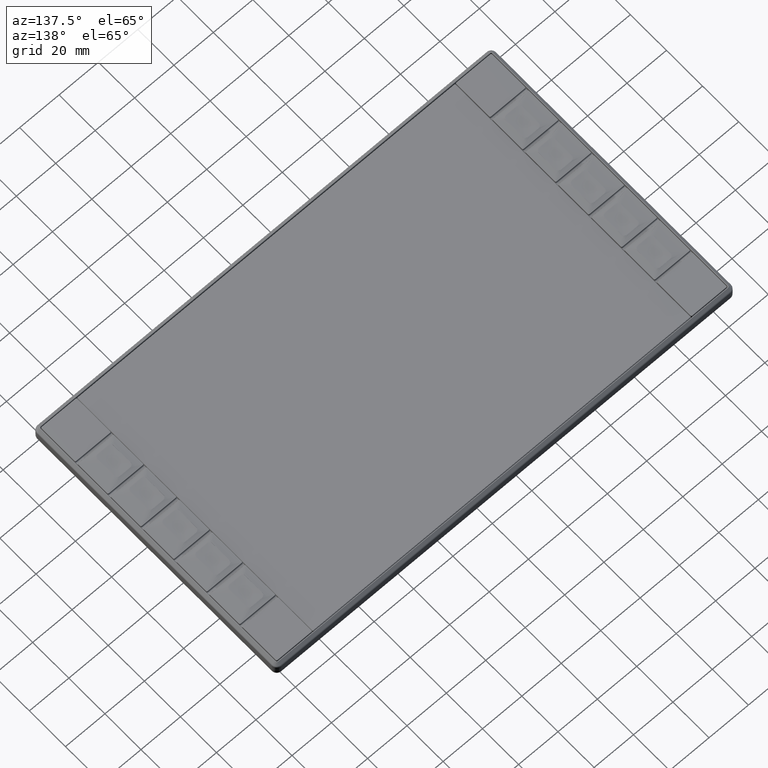
[diagram: clean part render]
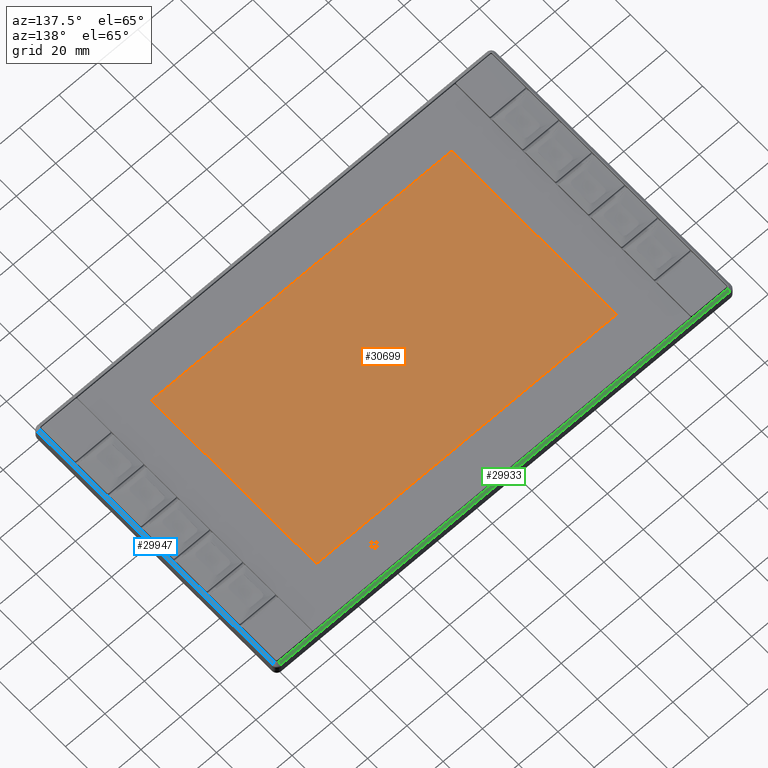
[diagram: same view with three faces highlighted in distinct colors, each labeled with its STEP entity id]
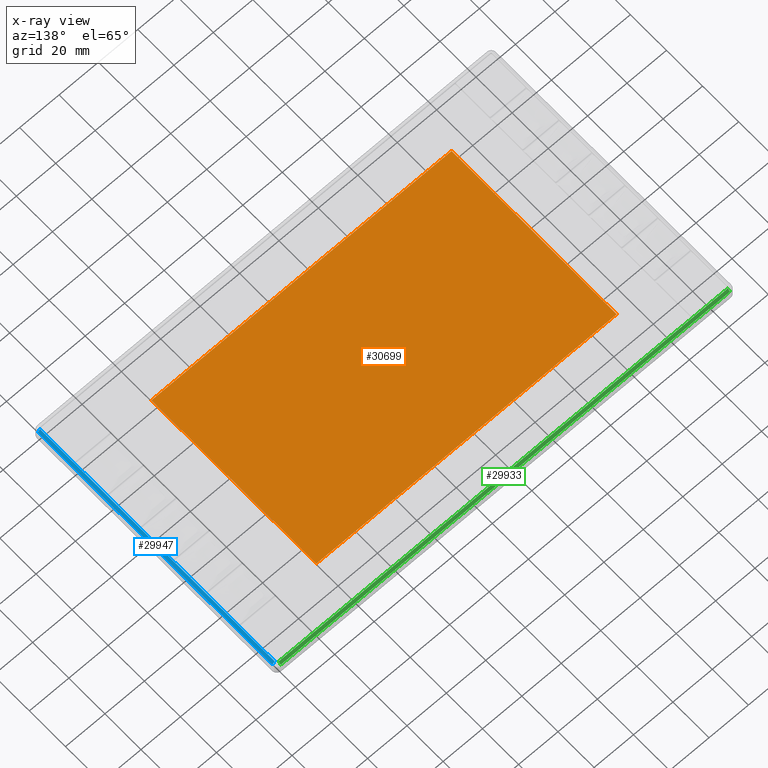
[diagram: x-ray of the same camera — body ghosted, the three highlighted faces saturated]
A machine part, auxiliary view with three faces highlighted in distinct colors.
The next image is the same camera in x-ray (body ghosted, the three faces saturated) — at least one of them is partly hidden behind the body in this view.
Their STEP definitions:

[orange] entity #30699 — the highlighted planar face has unit normal (0, -0, 1).
#4845=LINE('',#61251,#7474);
#4846=LINE('',#61254,#7475);
#4847=LINE('',#61256,#7476);
#4848=LINE('',#61258,#7477);
#7474=VECTOR('',#44849,1000.);
#7475=VECTOR('',#44850,1000.);
#7476=VECTOR('',#44851,1000.);
#7477=VECTOR('',#44852,1000.);
#8634=PLANE('',#37264);
#16085=ORIENTED_EDGE('',*,*,#21218,.T.);
#16086=ORIENTED_EDGE('',*,*,#21217,.T.);
#16087=ORIENTED_EDGE('',*,*,#21220,.T.);
#16088=ORIENTED_EDGE('',*,*,#21219,.T.);
#21217=EDGE_CURVE('',#24251,#24252,#4845,.T.);
#21218=EDGE_CURVE('',#24253,#24251,#4846,.T.);
#21219=EDGE_CURVE('',#24254,#24253,#4847,.T.);
#21220=EDGE_CURVE('',#24252,#24254,#4848,.T.);
#24251=VERTEX_POINT('',#61252);
#24252=VERTEX_POINT('',#61253);
#24253=VERTEX_POINT('',#61255);
#24254=VERTEX_POINT('',#61257);
#26781=EDGE_LOOP('',(#16085,#16086,#16087,#16088));
#28777=FACE_BOUND('',#26781,.T.);
#30699=ADVANCED_FACE('',(#28777),#8634,.T.);
#37264=AXIS2_PLACEMENT_3D('',#61261,#44855,#44856);
#44849=DIRECTION('',(0.,-1.,0.));
#44850=DIRECTION('',(1.,-4.55307998944044E-17,0.));
#44851=DIRECTION('',(0.,1.,0.));
#44852=DIRECTION('',(-1.,4.55307998944044E-17,0.));
#44855=DIRECTION('',(0.,0.,-1.));
#44856=DIRECTION('',(-1.,0.,0.));
#61251=CARTESIAN_POINT('',(76.2,0.,0.));
#61252=CARTESIAN_POINT('',(76.2,45.72,0.));
#61253=CARTESIAN_POINT('',(76.2,-45.72,0.));
#61254=CARTESIAN_POINT('',(2.08166817117217E-15,45.72,0.));
#61255=CARTESIAN_POINT('',(-76.2,45.72,0.));
#61256=CARTESIAN_POINT('',(-76.2,0.,0.));
#61257=CARTESIAN_POINT('',(-76.2,-45.72,0.));
#61258=CARTESIAN_POINT('',(-2.08166817117217E-15,-45.72,0.));
#61261=CARTESIAN_POINT('',(0.,0.,0.));

[blue] entity #29947 — the highlighted planar face has unit normal (-0.7071, 0, -0.7071).
#3895=LINE('',#51687,#6524);
#3903=LINE('',#51709,#6532);
#3904=LINE('',#51713,#6533);
#3905=LINE('',#51715,#6534);
#6524=VECTOR('',#41187,1000.);
#6532=VECTOR('',#41213,1000.);
#6533=VECTOR('',#41218,1000.);
#6534=VECTOR('',#41219,1000.);
#8340=PLANE('',#35917);
#12457=ORIENTED_EDGE('',*,*,#19438,.F.);
#12458=ORIENTED_EDGE('',*,*,#19425,.F.);
#12459=ORIENTED_EDGE('',*,*,#19436,.T.);
#12460=ORIENTED_EDGE('',*,*,#19439,.T.);
#19425=EDGE_CURVE('',#23137,#23138,#3895,.F.);
#19436=EDGE_CURVE('',#23137,#23144,#3903,.T.);
#19438=EDGE_CURVE('',#23138,#23145,#3904,.T.);
#19439=EDGE_CURVE('',#23144,#23145,#3905,.F.);
#23137=VERTEX_POINT('',#51682);
#23138=VERTEX_POINT('',#51686);
#23144=VERTEX_POINT('',#51710);
#23145=VERTEX_POINT('',#51714);
#25951=EDGE_LOOP('',(#12457,#12458,#12459,#12460));
#27947=FACE_BOUND('',#25951,.T.);
#29947=ADVANCED_FACE('',(#27947),#8340,.F.);
#35917=AXIS2_PLACEMENT_3D('',#51712,#41216,#41217);
#41187=DIRECTION('',(-0.707106781186548,0.,0.707106781186547));
#41213=DIRECTION('',(0.,-1.,0.));
#41216=DIRECTION('',(-0.707106781186547,0.,-0.707106781186548));
#41217=DIRECTION('',(-0.707106781186548,0.,0.707106781186547));
#41218=DIRECTION('',(0.,-1.,0.));
#41219=DIRECTION('',(-0.707106781186548,0.,0.707106781186547));
#51682=CARTESIAN_POINT('',(115.027181400645,65.,3.42677669529664));
#51686=CARTESIAN_POINT('',(116.167162333967,65.,2.28679576197467));
#51687=CARTESIAN_POINT('',(116.167162333967,65.,2.28679576197467));
#51709=CARTESIAN_POINT('',(115.027181400645,65.,3.42677669529664));
#51710=CARTESIAN_POINT('',(115.027181400645,-65.,3.42677669529664));
#51712=CARTESIAN_POINT('',(116.167162333967,65.,2.28679576197467));
#51713=CARTESIAN_POINT('',(116.167162333967,65.,2.28679576197467));
#51714=CARTESIAN_POINT('',(116.167162333967,-65.,2.28679576197467));
#51715=CARTESIAN_POINT('',(116.167162333967,-65.,2.28679576197467));

[green] entity #29933 — the highlighted planar face has unit normal (0, -0.7071, -0.7071).
#3880=LINE('',#51628,#6509);
#3888=LINE('',#51650,#6517);
#3889=LINE('',#51654,#6518);
#3890=LINE('',#51656,#6519);
#6509=VECTOR('',#41120,1000.);
#6517=VECTOR('',#41146,1000.);
#6518=VECTOR('',#41151,1000.);
#6519=VECTOR('',#41152,1000.);
#8336=PLANE('',#35891);
#12401=ORIENTED_EDGE('',*,*,#19410,.F.);
#12402=ORIENTED_EDGE('',*,*,#19397,.F.);
#12403=ORIENTED_EDGE('',*,*,#19408,.T.);
#12404=ORIENTED_EDGE('',*,*,#19411,.T.);
#19397=EDGE_CURVE('',#23123,#23124,#3880,.F.);
#19408=EDGE_CURVE('',#23123,#23130,#3888,.T.);
#19410=EDGE_CURVE('',#23124,#23131,#3889,.T.);
#19411=EDGE_CURVE('',#23130,#23131,#3890,.F.);
#23123=VERTEX_POINT('',#51623);
#23124=VERTEX_POINT('',#51627);
#23130=VERTEX_POINT('',#51651);
#23131=VERTEX_POINT('',#51655);
#25937=EDGE_LOOP('',(#12401,#12402,#12403,#12404));
#27933=FACE_BOUND('',#25937,.T.);
#29933=ADVANCED_FACE('',(#27933),#8336,.F.);
#35891=AXIS2_PLACEMENT_3D('',#51653,#41149,#41150);
#41120=DIRECTION('',(0.,-0.707106781186548,0.707106781186547));
#41146=DIRECTION('',(1.,6.08674903851512E-17,0.));
#41149=DIRECTION('',(4.30398152051473E-17,-0.707106781186547,-0.707106781186548));
#41150=DIRECTION('',(0.,0.707106781186548,-0.707106781186547));
#41151=DIRECTION('',(1.,6.08674903851512E-17,0.));
#41152=DIRECTION('',(4.30398152051474E-17,-0.707106781186548,0.707106781186547));
#51623=CARTESIAN_POINT('',(-114.,66.0271814006449,3.42677669529664));
#51627=CARTESIAN_POINT('',(-114.,67.1671623339669,2.28679576197467));
#51628=CARTESIAN_POINT('',(-114.,67.1671623339669,2.28679576197467));
#51650=CARTESIAN_POINT('',(-114.,66.0271814006449,3.42677669529664));
#51651=CARTESIAN_POINT('',(114.,66.027181400645,3.42677669529664));
#51653=CARTESIAN_POINT('',(-114.,67.1671623339669,2.28679576197467));
#51654=CARTESIAN_POINT('',(-114.,67.1671623339669,2.28679576197467));
#51655=CARTESIAN_POINT('',(114.,67.1671623339669,2.28679576197467));
#51656=CARTESIAN_POINT('',(114.,67.1671623339669,2.28679576197467));